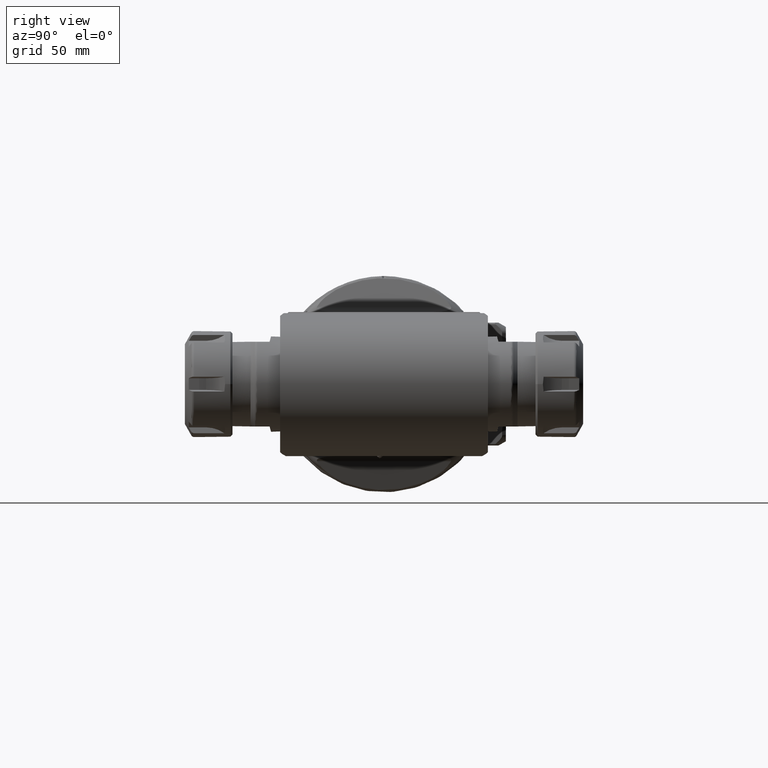
[diagram: clean part render]
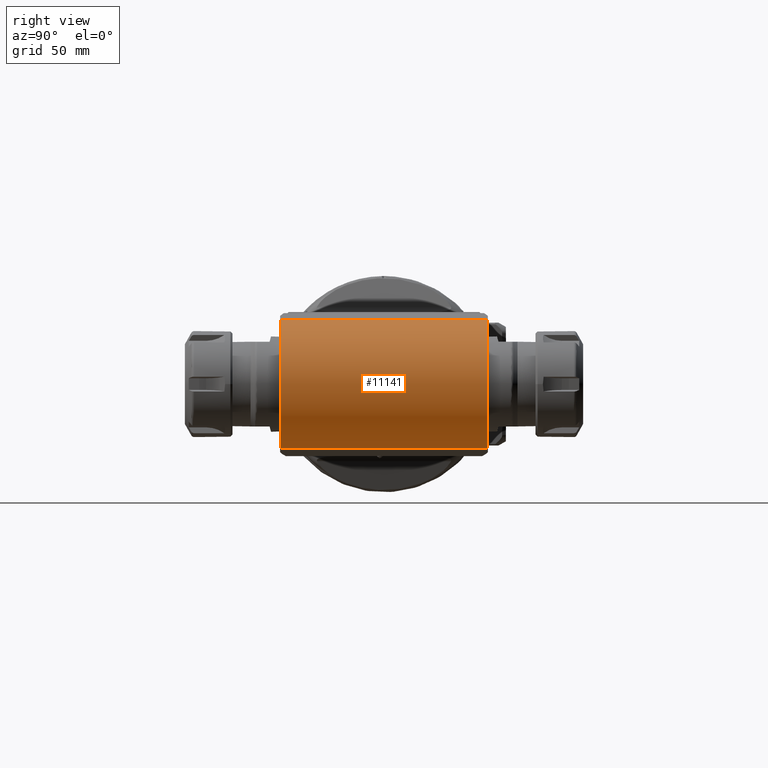
[diagram: same view with one face highlighted and labeled with its STEP entity id]
A machine part, right view. The second image highlights one B-rep face of the part: STEP entity #11141.
In plain terms, the highlighted cylindrical surface (partial cylindrical patch) has radius 31 mm, axis along (0, 1, 0).
Its self-contained STEP definition (entity closure, byte-faithful):
#982=LINE('',#21088,#1656);
#985=LINE('',#21253,#1659);
#1656=VECTOR('',#14554,98.);
#1659=VECTOR('',#14573,98.);
#2038=CYLINDRICAL_SURFACE('',#12184,31.);
#2576=FACE_OUTER_BOUND('',#3293,.T.);
#3293=EDGE_LOOP('',(#8794,#8795,#8796,#8797));
#4016=CIRCLE('',#12182,31.);
#4018=CIRCLE('',#12185,31.);
#4882=VERTEX_POINT('',#21085);
#4883=VERTEX_POINT('',#21087);
#4888=VERTEX_POINT('',#21116);
#4899=VERTEX_POINT('',#21252);
#6279=EDGE_CURVE('',#4883,#4882,#982,.T.);
#6287=EDGE_CURVE('',#4883,#4888,#4016,.T.);
#6299=EDGE_CURVE('',#4899,#4888,#985,.T.);
#6300=EDGE_CURVE('',#4899,#4882,#4018,.T.);
#8794=ORIENTED_EDGE('',*,*,#6299,.T.);
#8795=ORIENTED_EDGE('',*,*,#6287,.F.);
#8796=ORIENTED_EDGE('',*,*,#6279,.T.);
#8797=ORIENTED_EDGE('',*,*,#6300,.F.);
#11141=ADVANCED_FACE('',(#2576),#2038,.T.);
#12182=AXIS2_PLACEMENT_3D('',#21117,#14566,#14567);
#12184=AXIS2_PLACEMENT_3D('',#21251,#14571,#14572);
#12185=AXIS2_PLACEMENT_3D('',#21254,#14574,#14575);
#14554=DIRECTION('',(2.157729777165E-13,1.,5.289193119765E-14));
#14566=DIRECTION('center_axis',(0.,-1.,0.));
#14567=DIRECTION('ref_axis',(0.207911690817109,0.,-0.978147600733944));
#14571=DIRECTION('center_axis',(0.,1.,0.));
#14572=DIRECTION('ref_axis',(1.,0.,0.));
#14573=DIRECTION('',(0.,-1.,0.));
#14574=DIRECTION('center_axis',(0.,1.,0.));
#14575=DIRECTION('ref_axis',(0.207911690817799,0.,0.978147600733797));
#21085=CARTESIAN_POINT('',(284.5083594154,49.,-30.32257562275));
#21087=CARTESIAN_POINT('',(284.5083594153,-49.,-30.32257562275));
#21088=CARTESIAN_POINT('',(284.5083594153,-49.,-30.32257562275));
#21116=CARTESIAN_POINT('',(284.5083594154,-49.,30.32257562275));
#21117=CARTESIAN_POINT('Origin',(278.063097,-49.,0.));
#21251=CARTESIAN_POINT('Origin',(278.063097,49.,0.));
#21252=CARTESIAN_POINT('',(284.5083594154,49.,30.32257562275));
#21253=CARTESIAN_POINT('',(284.5083594154,49.,30.32257562275));
#21254=CARTESIAN_POINT('Origin',(278.063097,49.,0.));